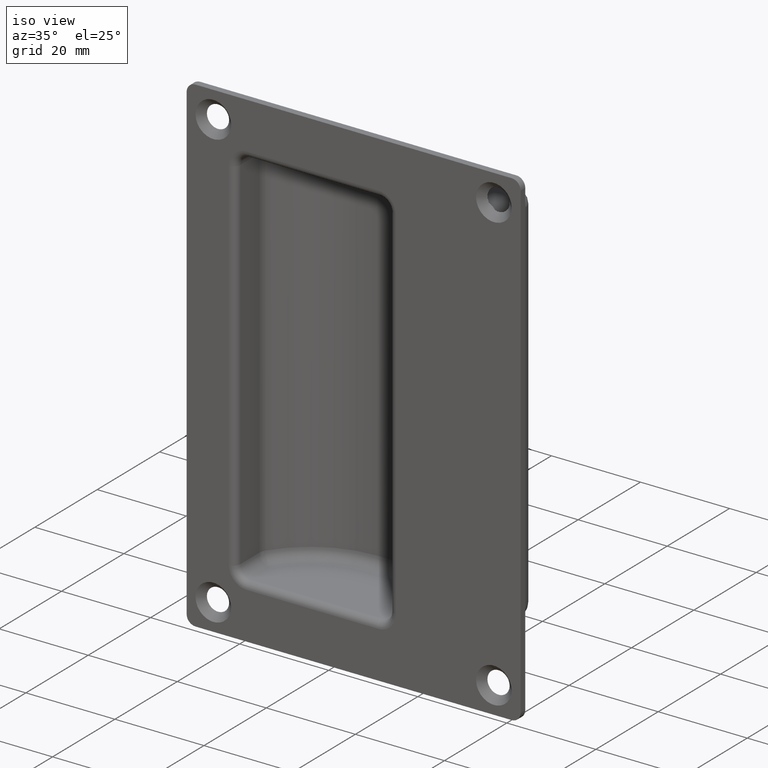
[diagram: clean part render]
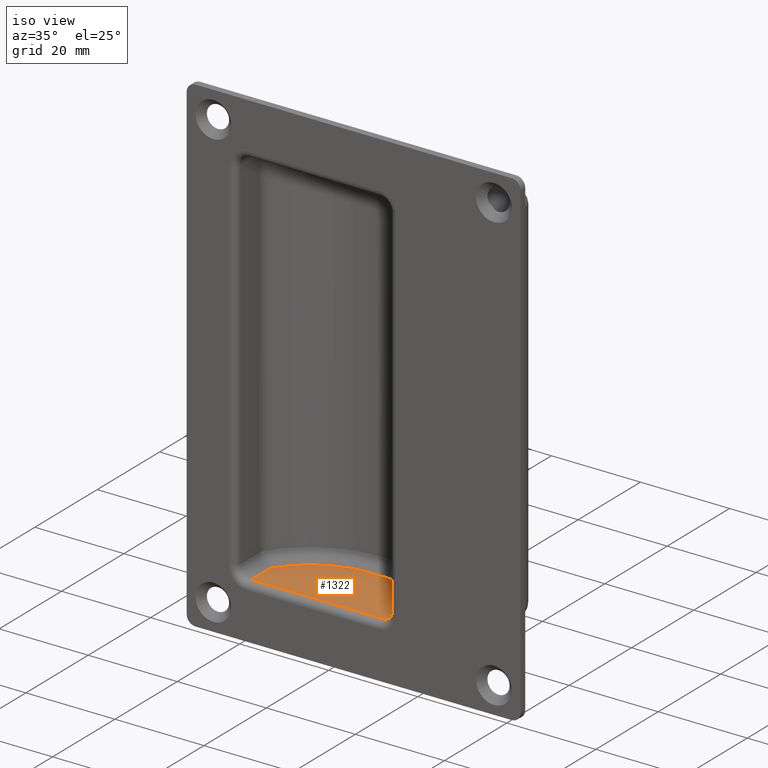
[diagram: same view with one face highlighted and labeled with its STEP entity id]
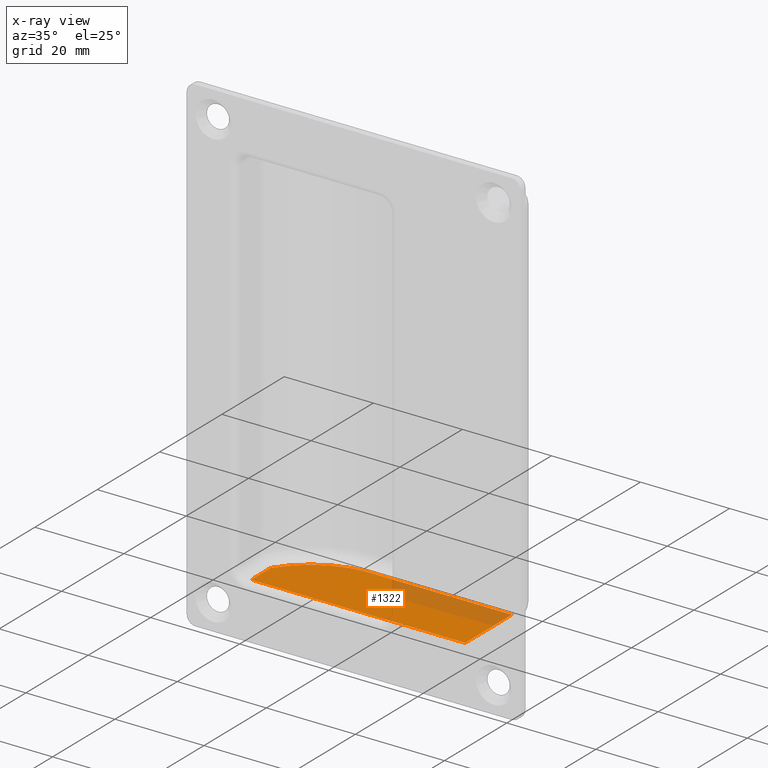
[diagram: x-ray of the same camera — body ghosted, the highlighted face saturated]
A machine part, iso view. The second image highlights one B-rep face of the part: STEP entity #1322.
The next image is the same camera in x-ray: the body ghosted, the highlighted face saturated — about 22% of this face is hidden behind the body in this view.
In plain terms, the highlighted planar face has unit normal (0, 0, 1).
Its self-contained STEP definition (entity closure, byte-faithful):
#51=PLANE('',#1452);
#97=LINE('',#2150,#193);
#105=LINE('',#2182,#201);
#106=LINE('',#2185,#202);
#107=LINE('',#2186,#203);
#193=VECTOR('',#1702,32.);
#201=VECTOR('',#1742,15.);
#202=VECTOR('',#1745,6.16829560767347);
#203=VECTOR('',#1746,48.);
#326=FACE_OUTER_BOUND('',#411,.T.);
#411=EDGE_LOOP('',(#1019,#1020,#1021,#1022,#1023));
#517=CIRCLE('',#1438,18.9090909090909);
#620=VERTEX_POINT('',#2144);
#621=VERTEX_POINT('',#2148);
#622=VERTEX_POINT('',#2152);
#629=VERTEX_POINT('',#2180);
#630=VERTEX_POINT('',#2184);
#760=EDGE_CURVE('',#620,#621,#97,.T.);
#762=EDGE_CURVE('',#621,#622,#517,.T.);
#776=EDGE_CURVE('',#629,#620,#105,.T.);
#777=EDGE_CURVE('',#622,#630,#106,.T.);
#778=EDGE_CURVE('',#629,#630,#107,.T.);
#1019=ORIENTED_EDGE('',*,*,#777,.T.);
#1020=ORIENTED_EDGE('',*,*,#778,.F.);
#1021=ORIENTED_EDGE('',*,*,#776,.T.);
#1022=ORIENTED_EDGE('',*,*,#760,.T.);
#1023=ORIENTED_EDGE('',*,*,#762,.T.);
#1322=ADVANCED_FACE('',(#326),#51,.T.);
#1438=AXIS2_PLACEMENT_3D('',#2154,#1707,#1708);
#1452=AXIS2_PLACEMENT_3D('',#2183,#1743,#1744);
#1702=DIRECTION('',(-1.,-2.77555756156289E-16,0.));
#1707=DIRECTION('center_axis',(0.,0.,1.));
#1708=DIRECTION('ref_axis',(-0.483250085348573,0.875482355624942,0.));
#1742=DIRECTION('',(0.,1.,0.));
#1743=DIRECTION('center_axis',(0.,0.,1.));
#1744=DIRECTION('ref_axis',(1.,0.,0.));
#1745=DIRECTION('',(0.,-1.,0.));
#1746=DIRECTION('',(-1.,0.,0.));
#2144=CARTESIAN_POINT('',(51.,14.5,-43.));
#2148=CARTESIAN_POINT('',(19.,14.5,-43.));
#2150=CARTESIAN_POINT('',(39.9852925297952,14.5,-43.));
#2152=CARTESIAN_POINT('',(3.,5.66829560767347,-43.));
#2154=CARTESIAN_POINT('Origin',(19.,-4.40909090909093,-43.));
#2180=CARTESIAN_POINT('',(51.,-0.5,-43.));
#2182=CARTESIAN_POINT('',(51.,3.83767497589977,-43.));
#2183=CARTESIAN_POINT('Origin',(28.9705850595904,7.67534995179954,-43.));
#2184=CARTESIAN_POINT('',(3.,-0.5,-43.));
#2185=CARTESIAN_POINT('',(3.,6.67182277973651,-43.));
#2186=CARTESIAN_POINT('',(27.9852925297952,-0.5,-43.));